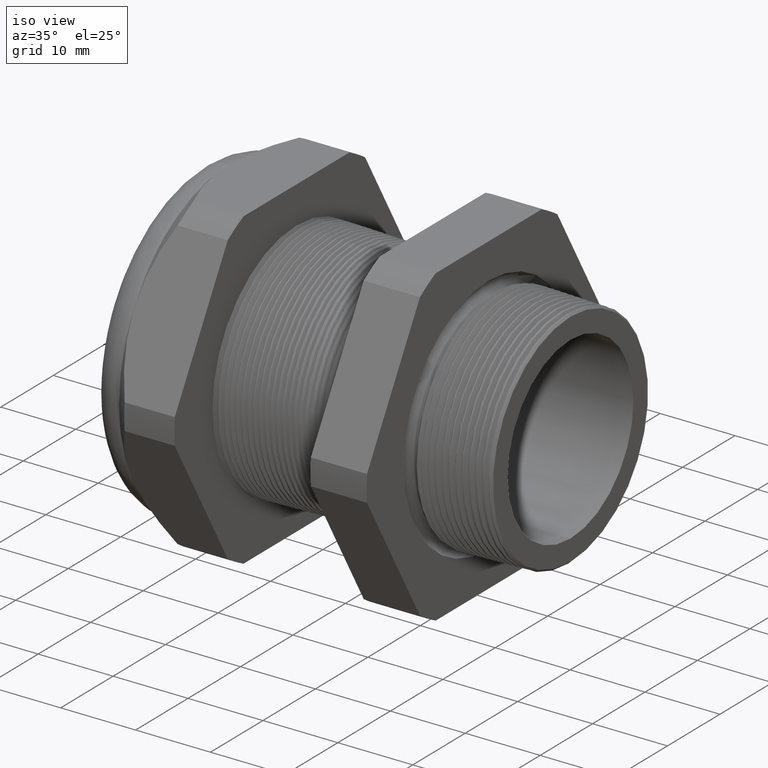
[diagram: clean part render]
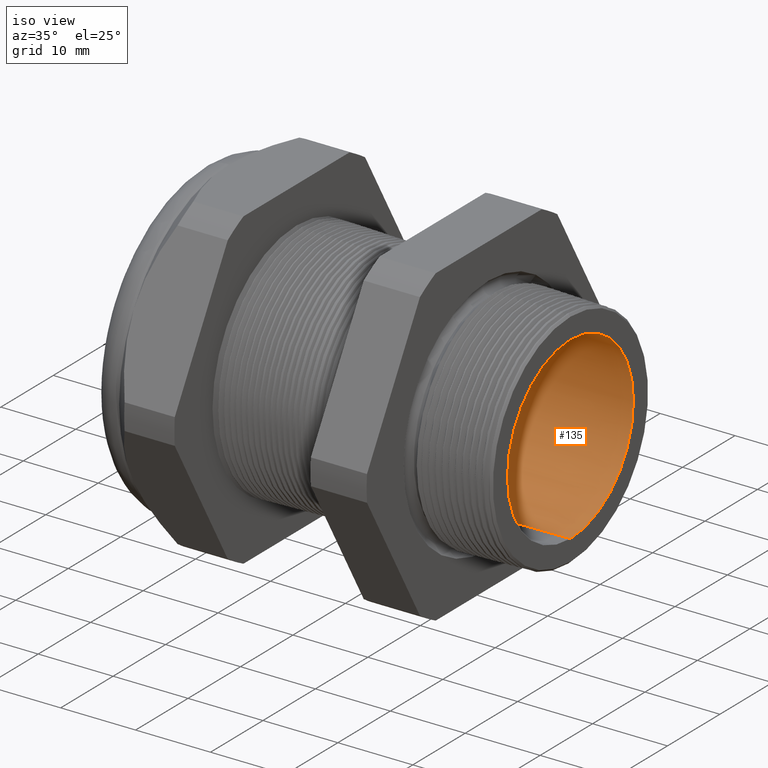
[diagram: same view with one face highlighted and labeled with its STEP entity id]
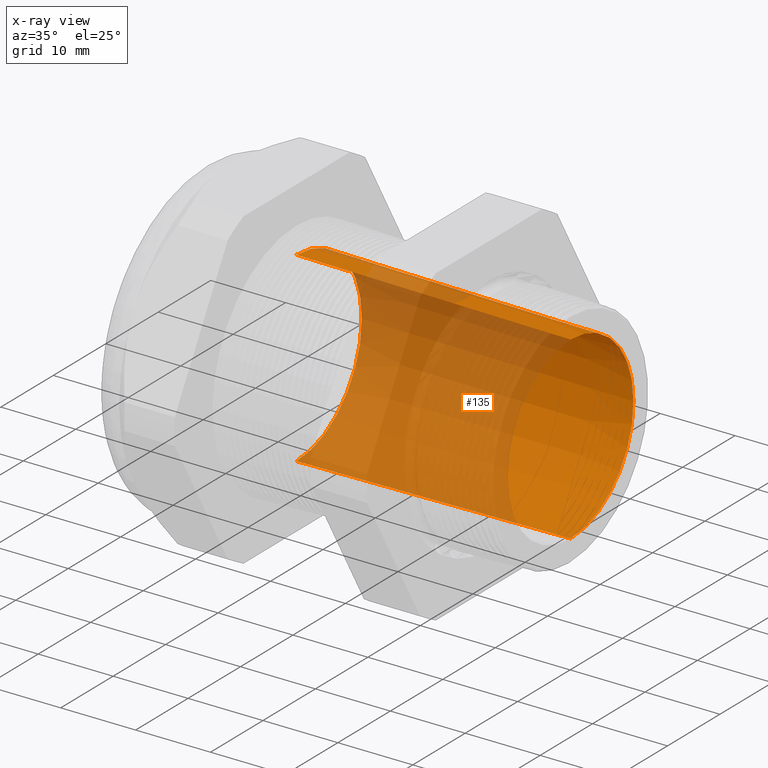
[diagram: x-ray of the same camera — body ghosted, the highlighted face saturated]
A machine part, iso view. The second image highlights one B-rep face of the part: STEP entity #135.
The next image is the same camera in x-ray: the body ghosted, the highlighted face saturated — about 64% of this face is hidden behind the body in this view.
In plain terms, the highlighted conical surface has half-angle 0.705 deg.
Its self-contained STEP definition (entity closure, byte-faithful):
#134 = EDGE_CURVE ( 'NONE', #6912, #6925, #1599, .T. ) ;
#135 = ADVANCED_FACE ( 'NONE', ( #1595 ), #1594, .F. ) ;
#136 = EDGE_LOOP ( 'NONE', ( #137, #138, #139, #140 ) ) ;
#137 = ORIENTED_EDGE ( 'NONE', *, *, #7004, .F. ) ;
#138 = ORIENTED_EDGE ( 'NONE', *, *, #134, .T. ) ;
#139 = ORIENTED_EDGE ( 'NONE', *, *, #6999, .T. ) ;
#140 = ORIENTED_EDGE ( 'NONE', *, *, #141, .F. ) ;
#141 = EDGE_CURVE ( 'NONE', #6927, #6933, #1593, .T. ) ;
#1585 = DIRECTION ( 'NONE',  ( 0.0000000000000000000, 0.0000000000000000000, -1.000000000000000000 ) ) ;
#1586 = DIRECTION ( 'NONE',  ( 1.000000000000000000, 0.0000000000000000000, 0.0000000000000000000 ) ) ;
#1587 = CARTESIAN_POINT ( 'NONE',  ( -1.320314960629920700, 0.0000000000000000000, 0.0000000000000000000 ) ) ;
#1588 = AXIS2_PLACEMENT_3D ( 'NONE', #1587, #1586, #1585 ) ;
#1589 = DIRECTION ( 'NONE',  ( 0.0000000000000000000, 0.0000000000000000000, 1.000000000000000000 ) ) ;
#1590 = DIRECTION ( 'NONE',  ( -1.000000000000000000, 0.0000000000000000000, 0.0000000000000000000 ) ) ;
#1591 = CARTESIAN_POINT ( 'NONE',  ( -1.320314960629920700, 0.0000000000000000000, 0.0000000000000000000 ) ) ;
#1592 = AXIS2_PLACEMENT_3D ( 'NONE', #1591, #1590, #1589 ) ;
#1593 = CIRCLE ( 'NONE', #1588, 0.4899999999999999900 ) ;
#1594 = CONICAL_SURFACE ( 'NONE', #1592, 0.4899999999999999900, 0.01229944958745183100 ) ;
#1595 = FACE_OUTER_BOUND ( 'NONE', #136, .T. ) ;
#1596 = DIRECTION ( 'NONE',  ( 0.0000000000000000000, 0.0000000000000000000, -1.000000000000000000 ) ) ;
#1597 = DIRECTION ( 'NONE',  ( 1.000000000000000000, 0.0000000000000000000, 0.0000000000000000000 ) ) ;
#1598 = AXIS2_PLACEMENT_3D ( 'NONE', #1604, #1597, #1596 ) ;
#1599 = CIRCLE ( 'NONE', #1598, 0.4722840254060284800 ) ;
#1604 = CARTESIAN_POINT ( 'NONE',  ( 0.1200000000000000000, 0.0000000000000000000, 0.0000000000000000000 ) ) ;
#5059 = CARTESIAN_POINT ( 'NONE',  ( 0.1200000000000000000, 5.892290257920615800E-017, -0.4722840254060284800 ) ) ;
#5090 = CARTESIAN_POINT ( 'NONE',  ( -1.320314960629920700, 0.0000000000000000000, 0.4899999999999999900 ) ) ;
#5092 = CARTESIAN_POINT ( 'NONE',  ( -1.320314960629920700, 6.000769315822029800E-017, -0.4899999999999999900 ) ) ;
#5093 = CARTESIAN_POINT ( 'NONE',  ( 0.1200000000000000000, 0.0000000000000000000, 0.4722840254060284800 ) ) ;
#5259 = DIRECTION ( 'NONE',  ( -0.9999243627234416500, 1.506210180493745200E-018, -0.01229913948693147700 ) ) ;
#5260 = VECTOR ( 'NONE', #5259, 39.37007874015748900 ) ;
#5261 = CARTESIAN_POINT ( 'NONE',  ( -1.320314960629920700, 6.000769315822029800E-017, -0.4899999999999999900 ) ) ;
#5262 = LINE ( 'NONE', #5261, #5260 ) ;
#5263 = DIRECTION ( 'NONE',  ( -0.9999243627234416500, 0.0000000000000000000, 0.01229913948693147700 ) ) ;
#5264 = VECTOR ( 'NONE', #5263, 39.37007874015748900 ) ;
#5265 = CARTESIAN_POINT ( 'NONE',  ( -1.320314960629920700, 0.0000000000000000000, 0.4899999999999999900 ) ) ;
#5270 = LINE ( 'NONE', #5265, #5264 ) ;
#6912 = VERTEX_POINT ( 'NONE', #5059 ) ;
#6925 = VERTEX_POINT ( 'NONE', #5093 ) ;
#6927 = VERTEX_POINT ( 'NONE', #5092 ) ;
#6933 = VERTEX_POINT ( 'NONE', #5090 ) ;
#6999 = EDGE_CURVE ( 'NONE', #6925, #6933, #5270, .T. ) ;
#7004 = EDGE_CURVE ( 'NONE', #6912, #6927, #5262, .T. ) ;